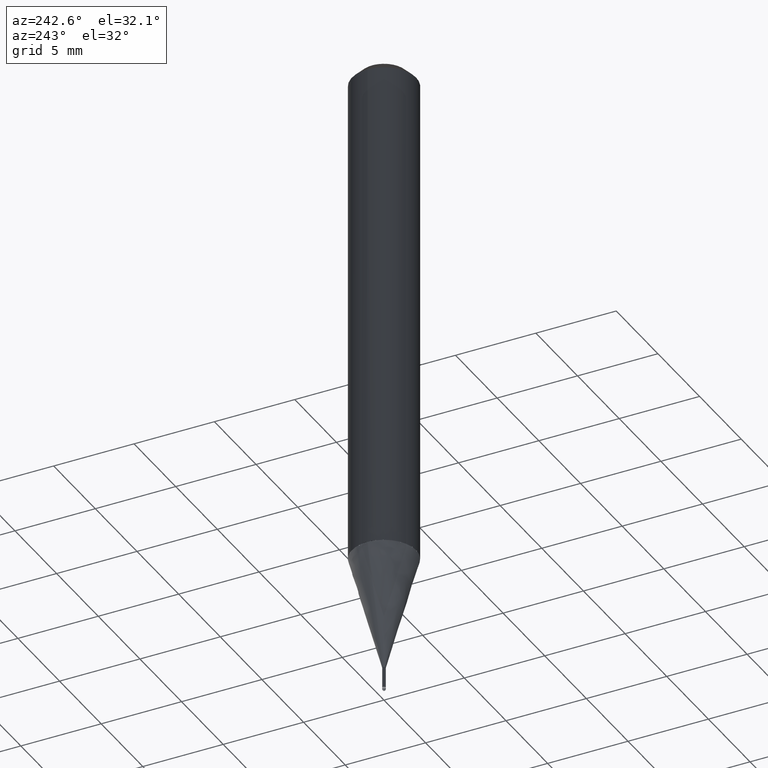
[diagram: clean part render]
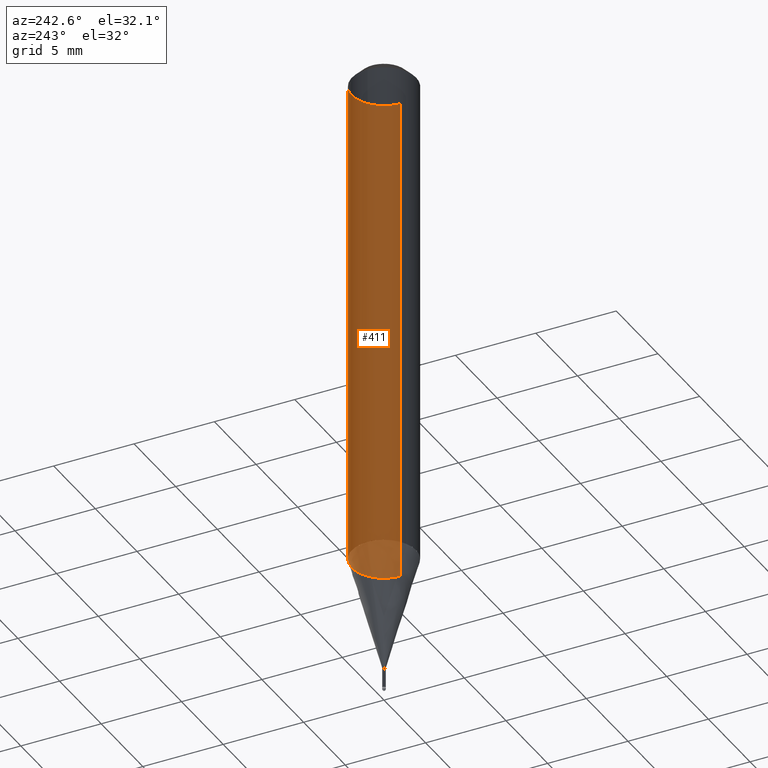
[diagram: same view with one face highlighted and labeled with its STEP entity id]
A machine part, auxiliary view. The second image highlights one B-rep face of the part: STEP entity #411.
In plain terms, the highlighted face is a freeform B-spline surface patch.
Its self-contained STEP definition (entity closure, byte-faithful):
#195=CARTESIAN_POINT('',(2.0,0.0,0.0));
#196=CARTESIAN_POINT('',(2.0,2.0,0.0));
#197=CARTESIAN_POINT('',(0.0,2.0,0.0));
#198=CARTESIAN_POINT('',(-2.0,2.0,0.0));
#199=CARTESIAN_POINT('',(-2.0,0.0,0.0));
#200=CARTESIAN_POINT('',(2.0,0.0,30.81));
#201=CARTESIAN_POINT('',(2.0,2.0,30.81));
#202=CARTESIAN_POINT('',(0.0,2.0,30.81));
#203=CARTESIAN_POINT('',(-2.0,2.0,30.81));
#204=CARTESIAN_POINT('',(-2.0,0.0,30.81));
#392=(
BOUNDED_SURFACE()
B_SPLINE_SURFACE(1,2,(
(#195,#196,#197,#198,#199),
(#200,#201,#202,#203,#204)
), .UNSPECIFIED.,.F.,.F.,.F.)
B_SPLINE_SURFACE_WITH_KNOTS((2,2),(3,2,3),(
0.0,1.0),(
0.0,0.5,1.0), .UNSPECIFIED.)
GEOMETRIC_REPRESENTATION_ITEM()
RATIONAL_B_SPLINE_SURFACE(((1.0,0.707106781187,1.0,0.707106781187,1.0),
(1.0,0.707106781187,1.0,0.707106781187,1.0)
))
REPRESENTATION_ITEM('')
SURFACE()
);
#393=(
BOUNDED_CURVE()
B_SPLINE_CURVE(2,(#200,#201,#202,#203,#204),.UNSPECIFIED.,.F.,.F.)
B_SPLINE_CURVE_WITH_KNOTS((3,2,3),
(0.0,0.5,1.0),.UNSPECIFIED.)
CURVE()
GEOMETRIC_REPRESENTATION_ITEM()
RATIONAL_B_SPLINE_CURVE((1.0,0.707106781187,1.0,0.707106781187,1.0))
REPRESENTATION_ITEM('')
);
#394=(
BOUNDED_CURVE()
B_SPLINE_CURVE(1,(#204,#199),.UNSPECIFIED.,.F.,.F.)
B_SPLINE_CURVE_WITH_KNOTS((2,2),
(0.0,1.0),.UNSPECIFIED.)
CURVE()
GEOMETRIC_REPRESENTATION_ITEM()
RATIONAL_B_SPLINE_CURVE((1.0,1.0))
REPRESENTATION_ITEM('')
);
#395=(
BOUNDED_CURVE()
B_SPLINE_CURVE(2,(#199,#198,#197,#196,#195),.UNSPECIFIED.,.F.,.F.)
B_SPLINE_CURVE_WITH_KNOTS((3,2,3),
(0.0,0.5,1.0),.UNSPECIFIED.)
CURVE()
GEOMETRIC_REPRESENTATION_ITEM()
RATIONAL_B_SPLINE_CURVE((1.0,0.707106781187,1.0,0.707106781187,1.0))
REPRESENTATION_ITEM('')
);
#396=(
BOUNDED_CURVE()
B_SPLINE_CURVE(1,(#195,#200),.UNSPECIFIED.,.F.,.F.)
B_SPLINE_CURVE_WITH_KNOTS((2,2),
(0.0,1.0),.UNSPECIFIED.)
CURVE()
GEOMETRIC_REPRESENTATION_ITEM()
RATIONAL_B_SPLINE_CURVE((1.0,1.0))
REPRESENTATION_ITEM('')
);
#397=VERTEX_POINT('',#195);
#398=VERTEX_POINT('',#199);
#399=VERTEX_POINT('',#200);
#400=VERTEX_POINT('',#204);
#401=EDGE_CURVE('',#399,#400,#393,.T.);
#402=EDGE_CURVE('',#400,#398,#394,.T.);
#403=EDGE_CURVE('',#398,#397,#395,.T.);
#404=EDGE_CURVE('',#397,#399,#396,.T.);
#405=ORIENTED_EDGE('',*,*,#401,.T.);
#406=ORIENTED_EDGE('',*,*,#402,.T.);
#407=ORIENTED_EDGE('',*,*,#403,.T.);
#408=ORIENTED_EDGE('',*,*,#404,.T.);
#409=EDGE_LOOP('',(#405,#406,#407,#408));
#410=FACE_OUTER_BOUND('',#409,.T.);
#411=ADVANCED_FACE('',(#410),#392,.T.);